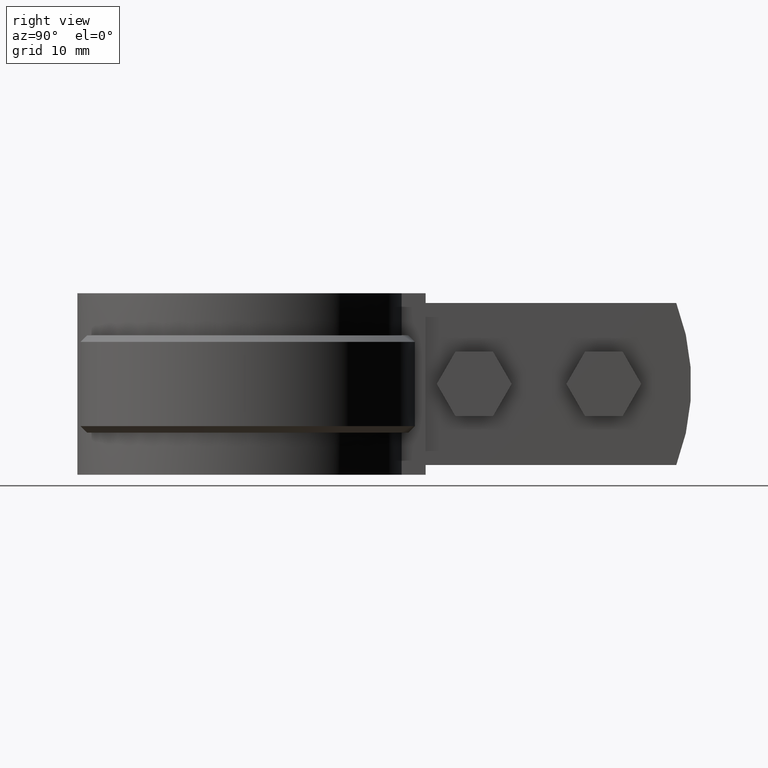
[diagram: clean part render]
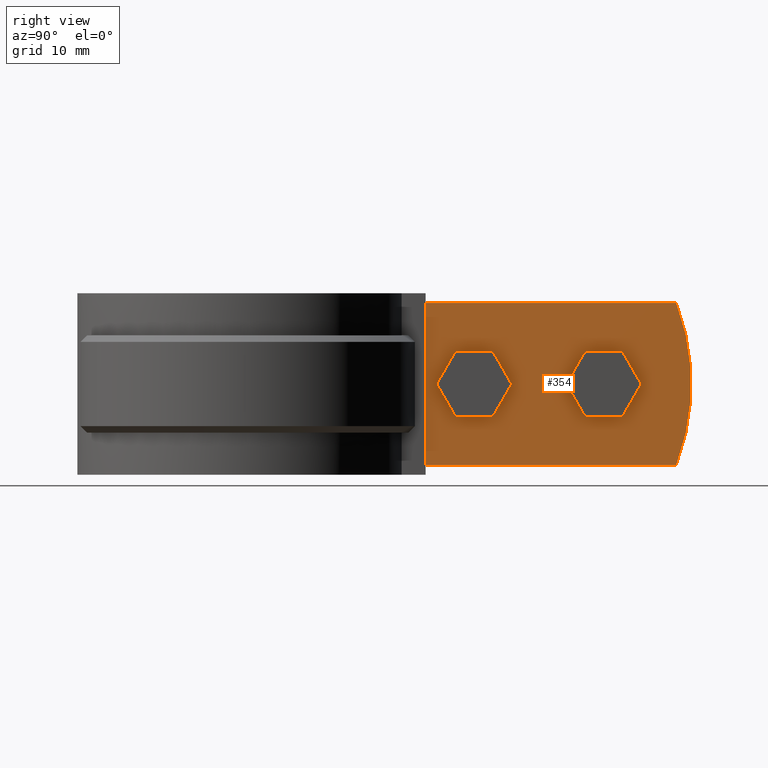
[diagram: same view with one face highlighted and labeled with its STEP entity id]
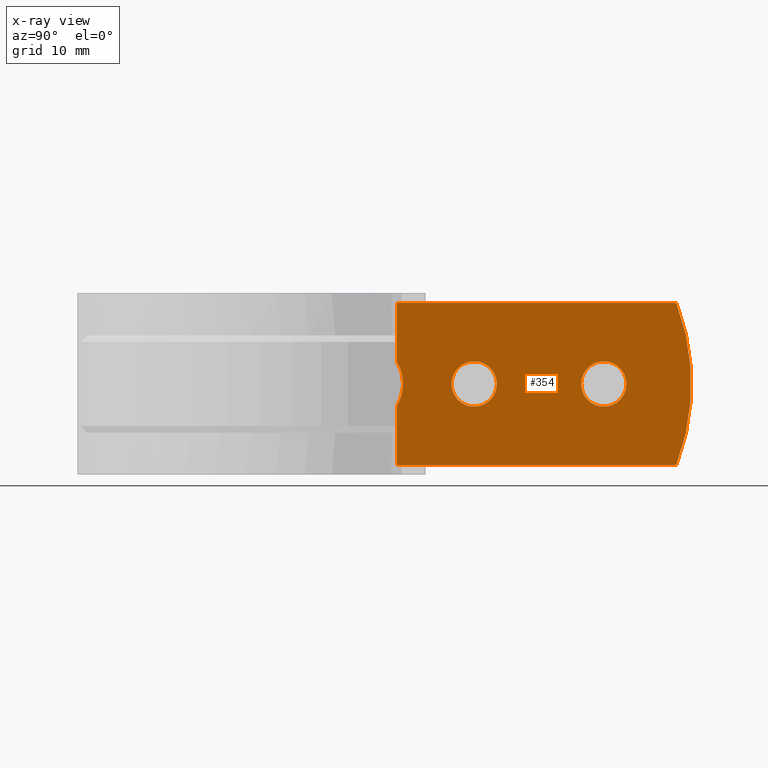
[diagram: x-ray of the same camera — body ghosted, the highlighted face saturated]
A machine part, right view. The second image highlights one B-rep face of the part: STEP entity #354.
The next image is the same camera in x-ray: the body ghosted, the highlighted face saturated — about 0% of this face is hidden behind the body in this view.
In plain terms, the highlighted planar face has unit normal (-1, 0, 0).
Its self-contained STEP definition (entity closure, byte-faithful):
#354 = ADVANCED_FACE( '', ( #607, #608, #609 ), #610, .F. );
#607 = FACE_BOUND( '', #1261, .T. );
#608 = FACE_BOUND( '', #1262, .T. );
#609 = FACE_OUTER_BOUND( '', #1263, .T. );
#610 = PLANE( '', #1264 );
#1261 = EDGE_LOOP( '', ( #2717 ) );
#1262 = EDGE_LOOP( '', ( #2718 ) );
#1263 = EDGE_LOOP( '', ( #2719, #2720, #2721, #2722, #2723, #2724 ) );
#1264 = AXIS2_PLACEMENT_3D( '', #2725, #2726, #2727 );
#2717 = ORIENTED_EDGE( '', *, *, #5008, .F. );
#2718 = ORIENTED_EDGE( '', *, *, #5009, .F. );
#2719 = ORIENTED_EDGE( '', *, *, #4910, .F. );
#2720 = ORIENTED_EDGE( '', *, *, #5001, .T. );
#2721 = ORIENTED_EDGE( '', *, *, #5003, .T. );
#2722 = ORIENTED_EDGE( '', *, *, #5010, .F. );
#2723 = ORIENTED_EDGE( '', *, *, #4888, .F. );
#2724 = ORIENTED_EDGE( '', *, *, #4977, .T. );
#2725 = CARTESIAN_POINT( '', ( 5.10000000000000, 23.9848389613105, 0.000000000000000 ) );
#2726 = DIRECTION( '', ( -1.00000000000000, 6.12303176911189E-017, 0.000000000000000 ) );
#2727 = DIRECTION( '', ( 6.12303176911189E-017, 1.00000000000000, 0.000000000000000 ) );
#4888 = EDGE_CURVE( '', #5468, #5470, #5471, .T. );
#4910 = EDGE_CURVE( '', #5509, #5503, #5511, .T. );
#4977 = EDGE_CURVE( '', #5468, #5503, #5623, .T. );
#5001 = EDGE_CURVE( '', #5509, #5657, #5659, .T. );
#5003 = EDGE_CURVE( '', #5657, #5660, #5663, .T. );
#5008 = EDGE_CURVE( '', #5668, #5668, #5669, .F. );
#5009 = EDGE_CURVE( '', #5670, #5670, #5671, .F. );
#5010 = EDGE_CURVE( '', #5470, #5660, #5672, .T. );
#5468 = VERTEX_POINT( '', #6551 );
#5470 = VERTEX_POINT( '', #6553 );
#5471 = LINE( '', #6554, #6555 );
#5503 = VERTEX_POINT( '', #6652 );
#5509 = VERTEX_POINT( '', #6721 );
#5511 = B_SPLINE_CURVE_WITH_KNOTS( '', 3, ( #6736, #6737, #6738, #6739, #6740, #6741, #6742, #6743, #6744, #6745, #6746, #6747, #6748, #6749 ), .UNSPECIFIED., .F., .F., ( 4, 2, 2, 2, 2, 2, 4 ), ( 1.43048962453820E-017, 0.00177719053585297, 0.00266578580377946, 0.00355438107170594, 0.00533157160755890, 0.00622016687548538, 0.00710876214341186 ), .UNSPECIFIED. );
#5623 = LINE( '', #7370, #7371 );
#5657 = VERTEX_POINT( '', #7444 );
#5659 = LINE( '', #7446, #7447 );
#5660 = VERTEX_POINT( '', #7448 );
#5663 = LINE( '', #7452, #7453 );
#5668 = VERTEX_POINT( '', #7460 );
#5669 = CIRCLE( '', #7461, 3.50000000000000 );
#5670 = VERTEX_POINT( '', #7462 );
#5671 = CIRCLE( '', #7463, 3.50000000000000 );
#5672 = CIRCLE( '', #7464, 35.0000000000000 );
#6551 = CARTESIAN_POINT( '', ( 5.10000000000000, 23.9848389613105, 0.000000000000000 ) );
#6553 = CARTESIAN_POINT( '', ( 5.10000000000001, 67.0942530965278, 0.000000000000000 ) );
#6554 = CARTESIAN_POINT( '', ( 5.10000000000000, 23.9848389613105, 0.000000000000000 ) );
#6555 = VECTOR( '', #10141, 1000.00000000000 );
#6652 = CARTESIAN_POINT( '', ( 5.10000000000000, 23.9848389613105, -9.09979672969004 ) );
#6721 = CARTESIAN_POINT( '', ( 5.10000000000000, 23.9848389613105, -15.9002032703100 ) );
#6736 = CARTESIAN_POINT( '', ( 5.10000000000000, 23.9848389613105, -15.9002032703100 ) );
#6737 = CARTESIAN_POINT( '', ( 5.10000000000000, 24.2961853814732, -15.3861010168394 ) );
#6738 = CARTESIAN_POINT( '', ( 5.10000000000000, 24.5298469624292, -14.8414348554673 ) );
#6739 = CARTESIAN_POINT( '', ( 5.10000000000000, 24.7701974598687, -13.9811019832280 ) );
#6740 = CARTESIAN_POINT( '', ( 5.10000000000000, 24.8316671555953, -13.6853033380259 ) );
#6741 = CARTESIAN_POINT( '', ( 5.10000000000000, 24.9129451268947, -13.0956667193187 ) );
#6742 = CARTESIAN_POINT( '', ( 5.09999999999999, 24.9334549103501, -12.8000921653460 ) );
#6743 = CARTESIAN_POINT( '', ( 5.09999999999999, 24.9339731514631, -11.9110763448694 ) );
#6744 = CARTESIAN_POINT( '', ( 5.10000000000001, 24.8507128355694, -11.3091482493899 ) );
#6745 = CARTESIAN_POINT( '', ( 5.10000000000001, 24.6122338313172, -10.4524611157789 ) );
#6746 = CARTESIAN_POINT( '', ( 5.10000000000000, 24.5138632661529, -10.1727221840659 ) );
#6747 = CARTESIAN_POINT( '', ( 5.10000000000000, 24.2783343869586, -9.62520976120835 ) );
#6748 = CARTESIAN_POINT( '', ( 5.10000000000000, 24.1405095982414, -9.35684360758108 ) );
#6749 = CARTESIAN_POINT( '', ( 5.10000000000000, 23.9848389613108, -9.09979672969040 ) );
#7370 = CARTESIAN_POINT( '', ( 5.10000000000000, 23.9848389613105, 0.000000000000000 ) );
#7371 = VECTOR( '', #10212, 1000.00000000000 );
#7444 = CARTESIAN_POINT( '', ( 5.10000000000000, 23.9848389613105, -25.0000000000000 ) );
#7446 = CARTESIAN_POINT( '', ( 5.10000000000000, 23.9848389613105, 0.000000000000000 ) );
#7447 = VECTOR( '', #10247, 1000.00000000000 );
#7448 = CARTESIAN_POINT( '', ( 5.10000000000001, 67.0942530965278, -25.0000000000000 ) );
#7452 = CARTESIAN_POINT( '', ( 5.10000000000000, 23.9848389613105, -25.0000000000000 ) );
#7453 = VECTOR( '', #10249, 1000.00000000000 );
#7460 = CARTESIAN_POINT( '', ( 5.10000000000000, 52.4025110199727, -12.5000000000000 ) );
#7461 = AXIS2_PLACEMENT_3D( '', #10258, #10259, #10260 );
#7462 = CARTESIAN_POINT( '', ( 5.10000000000000, 32.4025110199728, -12.5000000000000 ) );
#7463 = AXIS2_PLACEMENT_3D( '', #10261, #10262, #10263 );
#7464 = AXIS2_PLACEMENT_3D( '', #10264, #10265, #10266 );
#10141 = DIRECTION( '', ( 6.12303176911189E-017, 1.00000000000000, 0.000000000000000 ) );
#10212 = DIRECTION( '', ( 0.000000000000000, 0.000000000000000, -1.00000000000000 ) );
#10247 = DIRECTION( '', ( 0.000000000000000, 0.000000000000000, -1.00000000000000 ) );
#10249 = DIRECTION( '', ( 6.12303176911189E-017, 1.00000000000000, 0.000000000000000 ) );
#10258 = CARTESIAN_POINT( '', ( 5.10000000000000, 55.9025110199727, -12.5000000000000 ) );
#10259 = DIRECTION( '', ( -1.00000000000000, 6.12303176911189E-017, 0.000000000000000 ) );
#10260 = DIRECTION( '', ( -6.12303176911189E-017, -1.00000000000000, 0.000000000000000 ) );
#10261 = CARTESIAN_POINT( '', ( 5.10000000000000, 35.9025110199727, -12.5000000000000 ) );
#10262 = DIRECTION( '', ( -1.00000000000000, 6.12303176911189E-017, 0.000000000000000 ) );
#10263 = DIRECTION( '', ( -6.12303176911189E-017, -1.00000000000000, 0.000000000000000 ) );
#10264 = CARTESIAN_POINT( '', ( 5.10000000000001, 34.4025110199728, -12.5000000000000 ) );
#10265 = DIRECTION( '', ( -1.00000000000000, 6.12303176911189E-017, 0.000000000000000 ) );
#10266 = DIRECTION( '', ( -6.12303176911189E-017, -1.00000000000000, 0.000000000000000 ) );